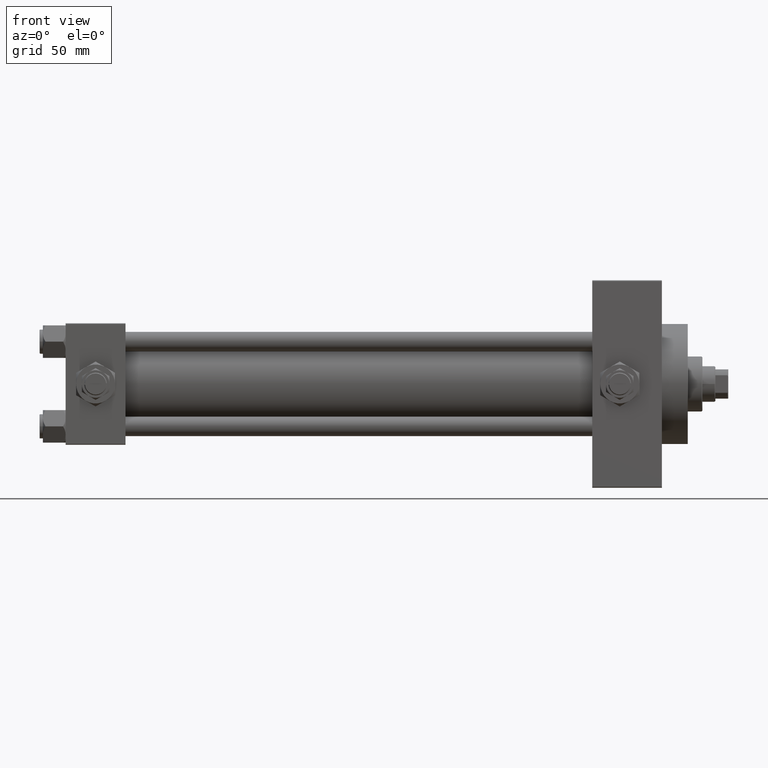
[diagram: clean part render]
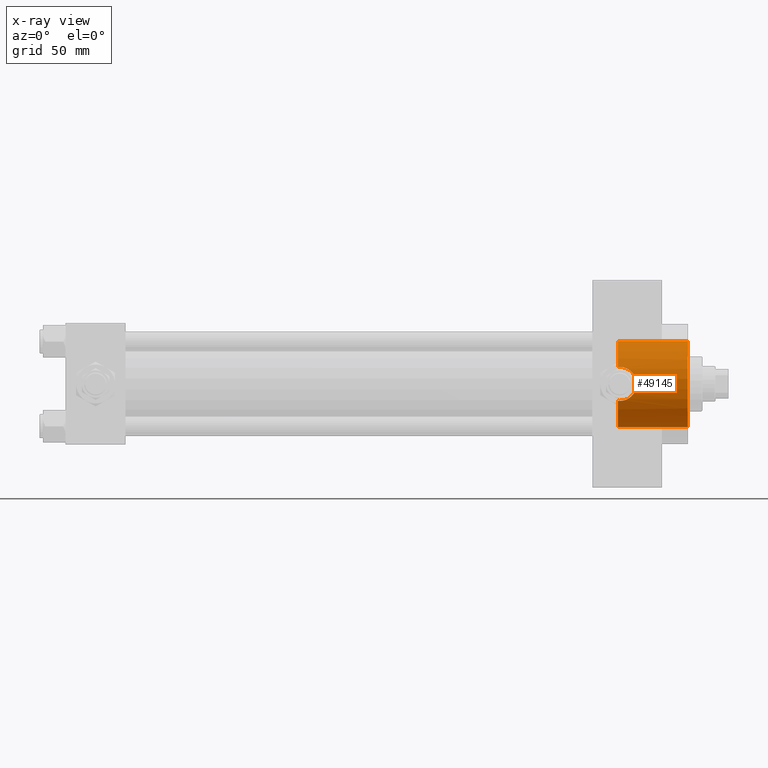
[diagram: x-ray — body ghosted, one internal face saturated and labeled with its STEP entity id]
A machine part, front view, then the same camera in x-ray: the body is ghosted and one INTERNAL B-rep face — a face not visible from any outside direction — is saturated and labeled: STEP entity #49145.
In plain terms, the highlighted cylindrical surface (partial cylindrical patch) has radius 26.5 mm, axis along (1, 0, 0).
Its self-contained STEP definition (entity closure, byte-faithful):
#165 = CARTESIAN_POINT ( 'NONE',  ( 341.9999999999999432, -24.33967132070604578, 10.47999999999998799 ) ) ;
#327 = CARTESIAN_POINT ( 'NONE',  ( 343.3786097457405049, -24.36915941385104034, -10.41231194222669032 ) ) ;
#572 = CARTESIAN_POINT ( 'NONE',  ( 348.9276451403628130, -25.30216499957184695, -7.893159106980490947 ) ) ;
#811 = CARTESIAN_POINT ( 'NONE',  ( 351.9389570606564348, -26.28956209411557765, -3.395175965175869059 ) ) ;
#966 = CARTESIAN_POINT ( 'NONE',  ( 341.9999999999999432, -24.33967132070604578, 10.47999999999998799 ) ) ;
#1049 = CARTESIAN_POINT ( 'NONE',  ( 349.1663633815065850, -25.37171319999175978, 7.654298772871981349 ) ) ;
#1120 = VERTEX_POINT ( 'NONE', #47658 ) ;
#2009 = CARTESIAN_POINT ( 'NONE',  ( 340.7399999999999523, -24.37226292324946542, -10.40398000767012121 ) ) ;
#2061 = CIRCLE ( 'NONE', #14808, 26.50000000000000355 ) ;
#2815 = CARTESIAN_POINT ( 'NONE',  ( 340.7399999999999523, 0.000000000000000000, 0.000000000000000000 ) ) ;
#3597 = EDGE_CURVE ( 'NONE', #10613, #46962, #20304, .T. ) ;
#4074 = CARTESIAN_POINT ( 'NONE',  ( 351.4057128516255943, -26.09263577897064224, -4.673612418766433407 ) ) ;
#4159 = VERTEX_POINT ( 'NONE', #7280 ) ;
#4301 = ORIENTED_EDGE ( 'NONE', *, *, #7680, .F. ) ;
#4321 = CARTESIAN_POINT ( 'NONE',  ( 347.2636119660474492, -24.89625137302611790, 9.087734872939149611 ) ) ;
#4560 = CARTESIAN_POINT ( 'NONE',  ( 347.5577538920437632, -24.96463143003450824, -8.891425016462832787 ) ) ;
#4589 = EDGE_CURVE ( 'NONE', #33449, #1120, #37771, .T. ) ;
#4799 = CARTESIAN_POINT ( 'NONE',  ( 352.4626037639856690, -26.49310609510639836, -0.6963515910539230802 ) ) ;
#5686 = DIRECTION ( 'NONE',  ( 0.000000000000000000, 0.000000000000000000, -1.000000000000000000 ) ) ;
#6135 = CARTESIAN_POINT ( 'NONE',  ( 341.1580741051582208, -24.35064928096445058, 10.45461191700780645 ) ) ;
#7280 = CARTESIAN_POINT ( 'NONE',  ( 341.9999999999999432, -24.33967132070604933, -10.47999999999998444 ) ) ;
#7680 = EDGE_CURVE ( 'NONE', #29464, #34797, #2061, .T. ) ;
#8049 = CARTESIAN_POINT ( 'NONE',  ( 352.1219222710723784, -26.36027543327035971, 2.738055544399103702 ) ) ;
#8288 = CARTESIAN_POINT ( 'NONE',  ( 350.8904987776701887, -25.91192981801192019, 5.559420023815752288 ) ) ;
#8297 = EDGE_CURVE ( 'NONE', #10650, #46962, #11190, .T. ) ;
#8529 = CARTESIAN_POINT ( 'NONE',  ( 349.6501220615578518, -25.51256335955730137, -7.170912732211419893 ) ) ;
#8828 = LINE ( 'NONE', #35220, #9332 ) ;
#9332 = VECTOR ( 'NONE', #12570, 1000.000000000000000 ) ;
#10613 = VERTEX_POINT ( 'NONE', #46018 ) ;
#10650 = VERTEX_POINT ( 'NONE', #165 ) ;
#10667 = EDGE_LOOP ( 'NONE', ( #36172, #23270, #22304, #38406, #4301, #29545, #12250, #40909 ) ) ;
#10784 = DIRECTION ( 'NONE',  ( 1.000000000000000000, 0.000000000000000000, 0.000000000000000000 ) ) ;
#11190 = B_SPLINE_CURVE_WITH_KNOTS ( 'NONE', 3,
 ( #966, #40239, #6135, #35326 ),
 .UNSPECIFIED., .F., .F.,
 ( 4, 4 ),
 ( 0.03437190755806017461, 0.03561776921873229668 ),
 .UNSPECIFIED. ) ;
#11793 = CARTESIAN_POINT ( 'NONE',  ( 342.6982936874238135, -24.33967132070605288, 10.47999999999998799 ) ) ;
#12035 = CARTESIAN_POINT ( 'NONE',  ( 348.4049404352973056, -25.16229795609820030, -8.322848467437522046 ) ) ;
#12250 = ORIENTED_EDGE ( 'NONE', *, *, #48203, .T. ) ;
#12269 = CARTESIAN_POINT ( 'NONE',  ( 352.3421836049515719, -26.44572692659851043, -1.728475508984246733 ) ) ;
#12520 = CARTESIAN_POINT ( 'NONE',  ( 352.3935590552673034, -26.46591511510091621, -1.387412420731360285 ) ) ;
#12570 = DIRECTION ( 'NONE',  ( 1.000000000000000000, -0.000000000000000000, -0.000000000000000000 ) ) ;
#13472 = DIRECTION ( 'NONE',  ( 1.000000000000000000, -0.000000000000000000, -0.000000000000000000 ) ) ;
#13723 = CARTESIAN_POINT ( 'NONE',  ( 340.7399999999999523, 0.000000000000000000, -26.50000000000000355 ) ) ;
#14808 = AXIS2_PLACEMENT_3D ( 'NONE', #2815, #10784, #48172 ) ;
#15531 = CARTESIAN_POINT ( 'NONE',  ( 351.9191483855534557, -26.28308039691836484, 3.400110870430098409 ) ) ;
#15768 = CARTESIAN_POINT ( 'NONE',  ( 352.2075249541714470, -26.39335609204157862, 2.399236127628251225 ) ) ;
#16006 = CARTESIAN_POINT ( 'NONE',  ( 348.3864792908362915, -25.16230905708522059, 8.316254619809559046 ) ) ;
#16245 = CARTESIAN_POINT ( 'NONE',  ( 344.3947302122626866, -24.45488967133338676, 10.20851256290626097 ) ) ;
#19265 = CARTESIAN_POINT ( 'NONE',  ( 352.4800680225664564, -26.50002690099941560, -0.3451042088078207781 ) ) ;
#19988 = CARTESIAN_POINT ( 'NONE',  ( 351.3916535229814144, -26.08830885934473898, 4.663043711798779967 ) ) ;
#20189 = FACE_OUTER_BOUND ( 'NONE', #10667, .T. ) ;
#20304 = CIRCLE ( 'NONE', #48182, 26.50000000000000355 ) ;
#21500 = CARTESIAN_POINT ( 'NONE',  ( 341.5811236364005481, -24.33967132070604933, -10.47999999999998444 ) ) ;
#21628 = DIRECTION ( 'NONE',  ( 0.000000000000000000, 0.000000000000000000, -1.000000000000000000 ) ) ;
#22304 = ORIENTED_EDGE ( 'NONE', *, *, #4589, .T. ) ;
#23000 = CARTESIAN_POINT ( 'NONE',  ( 347.2635990777562256, -24.90054338428141634, -9.068796382691610702 ) ) ;
#23234 = CARTESIAN_POINT ( 'NONE',  ( 341.9999999999999432, -24.33967132070604578, 10.47999999999998799 ) ) ;
#23270 = ORIENTED_EDGE ( 'NONE', *, *, #39037, .T. ) ;
#23475 = CARTESIAN_POINT ( 'NONE',  ( 348.1110651716821280, -25.09360970262139645, 8.520611273842973787 ) ) ;
#23719 = CARTESIAN_POINT ( 'NONE',  ( 352.1391112229688360, -26.36675217432885532, -2.738755341944234090 ) ) ;
#23959 = CARTESIAN_POINT ( 'NONE',  ( 348.9147507852791250, -25.30155050139243400, 7.882476147205608186 ) ) ;
#24367 = DIRECTION ( 'NONE',  ( 1.000000000000000000, 0.000000000000000000, 0.000000000000000000 ) ) ;
#26735 = CARTESIAN_POINT ( 'NONE',  ( 350.5155153844949609, -25.78569419426080600, -6.118106053452849302 ) ) ;
#27222 = CARTESIAN_POINT ( 'NONE',  ( 349.8811664359166684, -25.58300917221411197, -6.916171625962134861 ) ) ;
#27456 = CARTESIAN_POINT ( 'NONE',  ( 343.3839948142214098, -24.36973996242158336, 10.41091756284552261 ) ) ;
#28216 = AXIS2_PLACEMENT_3D ( 'NONE', #38816, #24367, #5686 ) ;
#28269 = EDGE_CURVE ( 'NONE', #29464, #4159, #34542, .T. ) ;
#28500 = EDGE_CURVE ( 'NONE', #34797, #1120, #47616, .T. ) ;
#29101 = CARTESIAN_POINT ( 'NONE',  ( 340.7399999999999523, 0.000000000000000000, 0.000000000000000000 ) ) ;
#29464 = VERTEX_POINT ( 'NONE', #2009 ) ;
#29545 = ORIENTED_EDGE ( 'NONE', *, *, #28269, .T. ) ;
#30471 = CARTESIAN_POINT ( 'NONE',  ( 351.5385175848664403, -26.14168889184969657, 4.354785931857528603 ) ) ;
#30671 = CARTESIAN_POINT ( 'NONE',  ( 340.7399999999999523, 0.000000000000000000, 0.000000000000000000 ) ) ;
#30716 = CARTESIAN_POINT ( 'NONE',  ( 349.8850942087586304, -25.58093385762821725, 6.936447548980003042 ) ) ;
#30958 = CARTESIAN_POINT ( 'NONE',  ( 345.7173844672075802, -24.61993612039163892, 9.804529592362715817 ) ) ;
#31195 = CARTESIAN_POINT ( 'NONE',  ( 344.7461877943152899, -24.48462605612511567, -10.13781324604278566 ) ) ;
#33449 = VERTEX_POINT ( 'NONE', #39489 ) ;
#33751 = CARTESIAN_POINT ( 'NONE',  ( 340.7399999999999523, 0.000000000000000000, -26.50000000000000355 ) ) ;
#34448 = CARTESIAN_POINT ( 'NONE',  ( 345.4024368383432488, -24.56844862672226881, -9.935854460437958835 ) ) ;
#34542 = B_SPLINE_CURVE_WITH_KNOTS ( 'NONE', 3,
 ( #48415, #40907, #21500, #44678 ),
 .UNSPECIFIED., .F., .F.,
 ( 4, 4 ),
 ( 0.000000000000000000, 0.001255586767787742180 ),
 .UNSPECIFIED. ) ;
#34797 = VERTEX_POINT ( 'NONE', #33751 ) ;
#34934 = CARTESIAN_POINT ( 'NONE',  ( 346.6580558779860439, -24.77960996754317691, -9.394203453174506890 ) ) ;
#35132 = CYLINDRICAL_SURFACE ( 'NONE', #35773, 26.50000000000000355 ) ;
#35168 = CARTESIAN_POINT ( 'NONE',  ( 350.3165002292778354, -25.71874665637611912, 6.413821170274212058 ) ) ;
#35220 = CARTESIAN_POINT ( 'NONE',  ( 340.7399999999999523, 3.245314017740486554E-15, 26.50000000000000355 ) ) ;
#35326 = CARTESIAN_POINT ( 'NONE',  ( 340.7399999999999523, -24.37226292324946542, 10.40398000767012476 ) ) ;
#35773 = AXIS2_PLACEMENT_3D ( 'NONE', #30671, #42870, #45897 ) ;
#36172 = ORIENTED_EDGE ( 'NONE', *, *, #3597, .F. ) ;
#37771 = CIRCLE ( 'NONE', #28216, 26.50000000000000355 ) ;
#38193 = CARTESIAN_POINT ( 'NONE',  ( 351.0816778311290136, -25.97633853132262516, -5.273786452924778878 ) ) ;
#38406 = ORIENTED_EDGE ( 'NONE', *, *, #28500, .F. ) ;
#38427 = CARTESIAN_POINT ( 'NONE',  ( 342.6904960883776994, -24.33967132070605288, -10.47999999999998622 ) ) ;
#38660 = VECTOR ( 'NONE', #13472, 1000.000000000000000 ) ;
#38669 = CARTESIAN_POINT ( 'NONE',  ( 344.7286532048193521, -24.48994387988091148, 10.12445329003759831 ) ) ;
#38816 = CARTESIAN_POINT ( 'NONE',  ( 383.9999999999999432, 0.000000000000000000, 0.000000000000000000 ) ) ;
#38910 = CARTESIAN_POINT ( 'NONE',  ( 352.4798633477533940, -26.49994595790487750, 0.6963870350870609016 ) ) ;
#39037 = EDGE_CURVE ( 'NONE', #10613, #33449, #8828, .T. ) ;
#39489 = CARTESIAN_POINT ( 'NONE',  ( 383.9999999999999432, 3.245314017740486554E-15, 26.50000000000000355 ) ) ;
#40239 = CARTESIAN_POINT ( 'NONE',  ( 341.5796744023296583, -24.33967132070604933, 10.47999999999998799 ) ) ;
#40332 = B_SPLINE_CURVE_WITH_KNOTS ( 'NONE', 3,
 ( #42668, #38427, #327, #31195, #34448, #46186, #34934, #23000, #4560, #12035, #572, #8529, #27222, #46419, #26735, #38193, #4074, #811, #23719, #12269, #12520, #4799, #19265, #38910, #41935, #15768, #8049, #15531, #42425, #30471, #19988, #45692, #8288, #35168, #30716, #1049, #23959, #16006, #23475, #4321, #45940, #30958, #42913, #38669, #16245, #27456, #11793, #23234 ),
 .UNSPECIFIED., .F., .F.,
 ( 4, 2, 2, 2, 2, 2, 2, 2, 2, 2, 2, 2, 2, 2, 2, 2, 2, 2, 2, 2, 2, 2, 2, 4 ),
 ( 0.001255586767787742180, 0.003325356817179899935, 0.005395126866572057256, 0.006430011891268136784, 0.007464896915964218047, 0.009534666965356375368, 0.01056955199005239592, 0.01160443701474841993, 0.01367420706414046103, 0.01574397711353250559, 0.01677886213822850706, 0.01781374716292451199, 0.01988351721231651839, 0.02091840223701253720, 0.02195328726170855949, 0.02298817228640457830, 0.02402305731110059711, 0.02609282736049263821, 0.02712771238518860498, 0.02816259740988456828, 0.03023236745927649488, 0.03126725248397245471, 0.03230213750866841455, 0.03437190755806017461 ),
 .UNSPECIFIED. ) ;
#40907 = CARTESIAN_POINT ( 'NONE',  ( 341.1611364518797131, -24.35049096341793273, -10.45498279016080190 ) ) ;
#40909 = ORIENTED_EDGE ( 'NONE', *, *, #8297, .T. ) ;
#41935 = CARTESIAN_POINT ( 'NONE',  ( 352.4114040688938303, -26.47265107862981282, 1.382412405478201434 ) ) ;
#42425 = CARTESIAN_POINT ( 'NONE',  ( 351.8022638174866188, -26.23907308479209632, 3.723318718764354163 ) ) ;
#42668 = CARTESIAN_POINT ( 'NONE',  ( 341.9999999999999432, -24.33967132070604933, -10.47999999999998444 ) ) ;
#42870 = DIRECTION ( 'NONE',  ( 1.000000000000000000, -0.000000000000000000, -0.000000000000000000 ) ) ;
#42913 = CARTESIAN_POINT ( 'NONE',  ( 345.3904700717596370, -24.57248644795726378, 9.922439993611758879 ) ) ;
#44310 = DIRECTION ( 'NONE',  ( 1.000000000000000000, 0.000000000000000000, 0.000000000000000000 ) ) ;
#44678 = CARTESIAN_POINT ( 'NONE',  ( 341.9999999999999432, -24.33967132070604933, -10.47999999999998444 ) ) ;
#45692 = CARTESIAN_POINT ( 'NONE',  ( 351.0679913760331488, -25.97354752128884314, 5.264851845784575879 ) ) ;
#45897 = DIRECTION ( 'NONE',  ( 0.000000000000000000, 0.000000000000000000, -1.000000000000000000 ) ) ;
#45940 = CARTESIAN_POINT ( 'NONE',  ( 346.6659000583121042, -24.77500862834707007, 9.408993987884889165 ) ) ;
#46018 = CARTESIAN_POINT ( 'NONE',  ( 340.7399999999999523, 3.245314017740486554E-15, 26.50000000000000355 ) ) ;
#46186 = CARTESIAN_POINT ( 'NONE',  ( 346.3489237122697659, -24.72318467201153425, -9.541179571695417749 ) ) ;
#46419 = CARTESIAN_POINT ( 'NONE',  ( 350.3132647636414276, -25.71940794313460188, -6.390292897823909080 ) ) ;
#46769 = CARTESIAN_POINT ( 'NONE',  ( 340.7399999999999523, -24.37226292324946542, 10.40398000767012476 ) ) ;
#46962 = VERTEX_POINT ( 'NONE', #46769 ) ;
#47616 = LINE ( 'NONE', #13723, #38660 ) ;
#47658 = CARTESIAN_POINT ( 'NONE',  ( 383.9999999999999432, 0.000000000000000000, -26.50000000000000355 ) ) ;
#48172 = DIRECTION ( 'NONE',  ( 0.000000000000000000, 0.000000000000000000, -1.000000000000000000 ) ) ;
#48182 = AXIS2_PLACEMENT_3D ( 'NONE', #29101, #44310, #21628 ) ;
#48203 = EDGE_CURVE ( 'NONE', #4159, #10650, #40332, .T. ) ;
#48415 = CARTESIAN_POINT ( 'NONE',  ( 340.7399999999999523, -24.37226292324946542, -10.40398000767012121 ) ) ;
#49145 = ADVANCED_FACE ( 'NONE', ( #20189 ), #35132, .F. ) ;